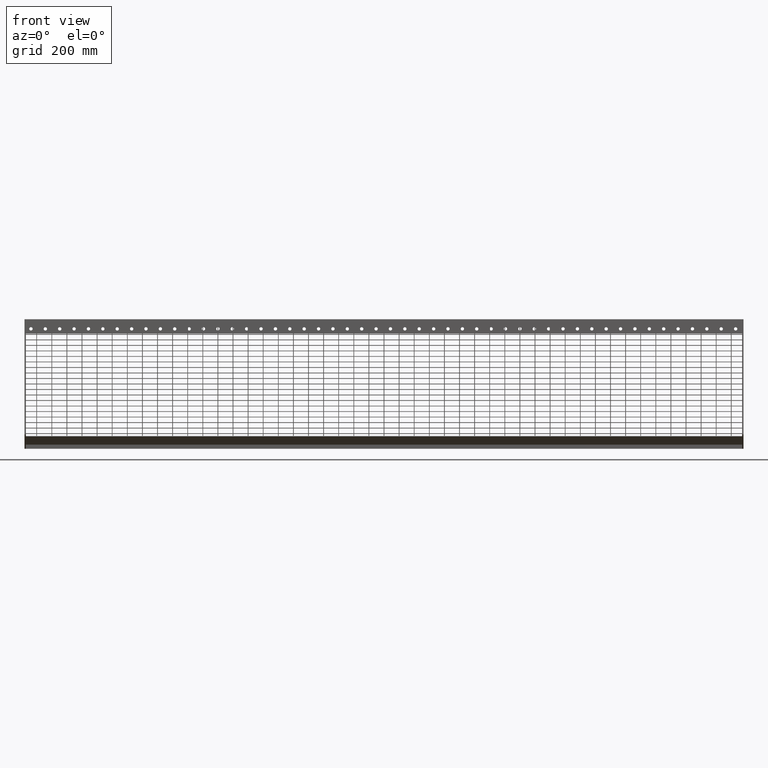
[diagram: clean part render]
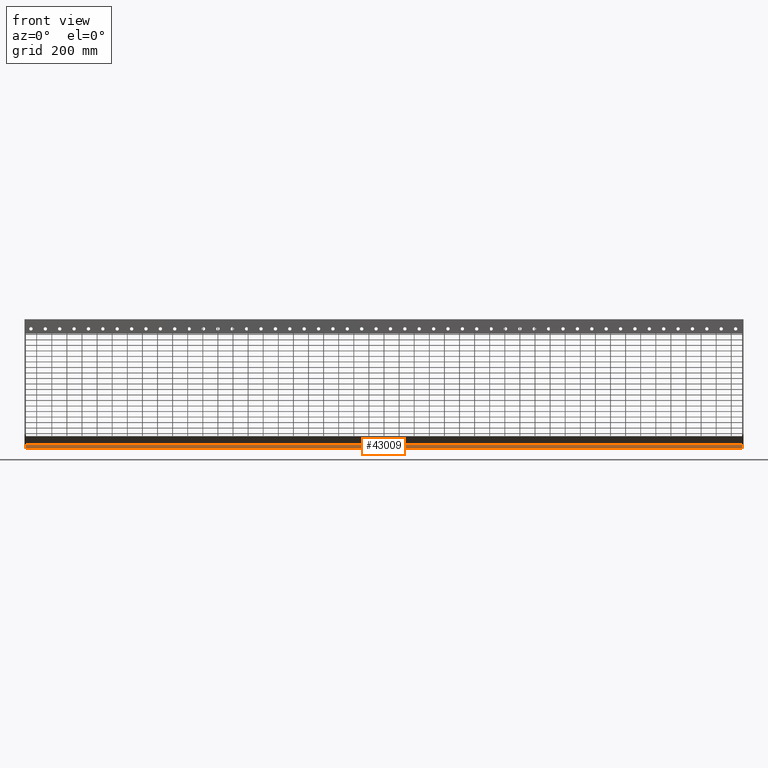
[diagram: same view with one face highlighted and labeled with its STEP entity id]
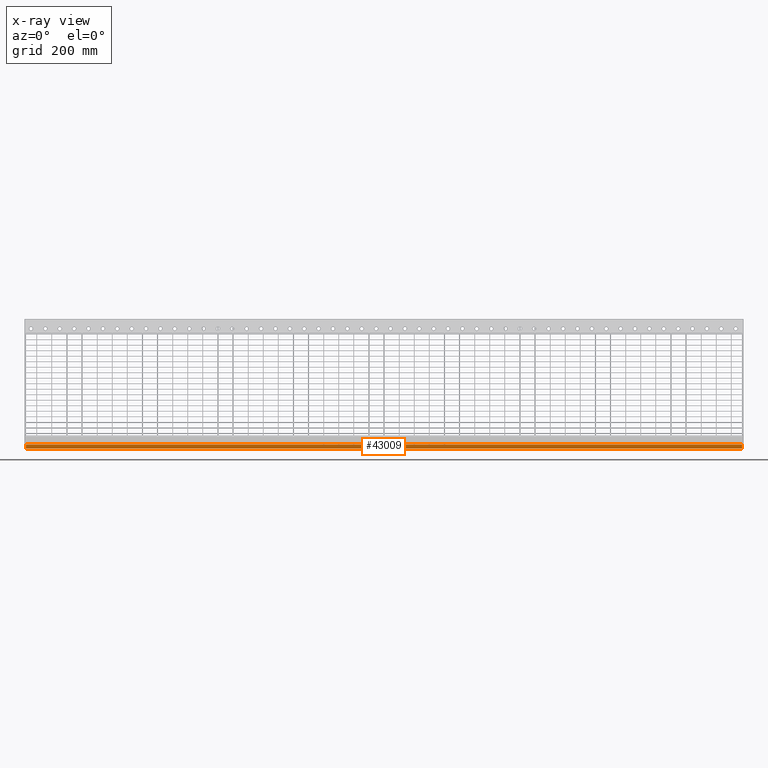
[diagram: x-ray of the same camera — body ghosted, the highlighted face saturated]
A machine part, front view. The second image highlights one B-rep face of the part: STEP entity #43009.
The next image is the same camera in x-ray: the body ghosted, the highlighted face saturated — about 0% of this face is hidden behind the body in this view.
In plain terms, the highlighted planar face has unit normal (0, 1, -0).
Its self-contained STEP definition (entity closure, byte-faithful):
#2627 = DIRECTION ( 'NONE',  ( 1.000000000000000000, -0.0000000000000000000, -0.0000000000000000000 ) ) ;
#3217 = EDGE_LOOP ( 'NONE', ( #42190, #31730, #13677, #27069 ) ) ;
#3756 = EDGE_CURVE ( 'NONE', #23351, #15274, #36457, .T. ) ;
#6368 = VECTOR ( 'NONE', #39454, 1000.000000000000000 ) ;
#9237 = VERTEX_POINT ( 'NONE', #43144 ) ;
#9297 = VECTOR ( 'NONE', #12867, 1000.000000000000000 ) ;
#12319 = LINE ( 'NONE', #15377, #38423 ) ;
#12867 = DIRECTION ( 'NONE',  ( 1.000000000000000000, -0.0000000000000000000, -0.0000000000000000000 ) ) ;
#13177 = CARTESIAN_POINT ( 'NONE',  ( -823.1577310586392300, 48.00000000000027700, -261.5000000000000000 ) ) ;
#13677 = ORIENTED_EDGE ( 'NONE', *, *, #3756, .T. ) ;
#13727 = FACE_OUTER_BOUND ( 'NONE', #3217, .T. ) ;
#15274 = VERTEX_POINT ( 'NONE', #43945 ) ;
#15377 = CARTESIAN_POINT ( 'NONE',  ( 747.0000000000000000, 48.00000000000027700, -270.0000000000000000 ) ) ;
#15416 = LINE ( 'NONE', #43251, #6368 ) ;
#17215 = VERTEX_POINT ( 'NONE', #43852 ) ;
#18914 = DIRECTION ( 'NONE',  ( 0.0000000000000000000, 0.0000000000000000000, 1.000000000000000000 ) ) ;
#20383 = EDGE_CURVE ( 'NONE', #17215, #23351, #15416, .T. ) ;
#22338 = EDGE_CURVE ( 'NONE', #17215, #9237, #37909, .T. ) ;
#23351 = VERTEX_POINT ( 'NONE', #24611 ) ;
#23459 = VECTOR ( 'NONE', #2627, 1000.000000000000000 ) ;
#24611 = CARTESIAN_POINT ( 'NONE',  ( -747.0000000000000000, 48.00000000000027700, -270.0000000000000000 ) ) ;
#24726 = PLANE ( 'NONE',  #27886 ) ;
#25898 = CARTESIAN_POINT ( 'NONE',  ( -823.1577310586392300, 48.00000000000027700, -270.0000000000000000 ) ) ;
#27069 = ORIENTED_EDGE ( 'NONE', *, *, #40661, .T. ) ;
#27886 = AXIS2_PLACEMENT_3D ( 'NONE', #31725, #28008, #38166 ) ;
#28008 = DIRECTION ( 'NONE',  ( 0.0000000000000000000, 1.000000000000000000, -0.0000000000000000000 ) ) ;
#31725 = CARTESIAN_POINT ( 'NONE',  ( -823.1577310586392300, 48.00000000000027700, -270.0000000000000000 ) ) ;
#31730 = ORIENTED_EDGE ( 'NONE', *, *, #20383, .T. ) ;
#36457 = LINE ( 'NONE', #25898, #9297 ) ;
#37909 = LINE ( 'NONE', #13177, #23459 ) ;
#38166 = DIRECTION ( 'NONE',  ( 0.0000000000000000000, 0.0000000000000000000, 1.000000000000000000 ) ) ;
#38423 = VECTOR ( 'NONE', #18914, 1000.000000000000000 ) ;
#39454 = DIRECTION ( 'NONE',  ( 0.0000000000000000000, -0.0000000000000000000, -1.000000000000000000 ) ) ;
#40661 = EDGE_CURVE ( 'NONE', #15274, #9237, #12319, .T. ) ;
#42190 = ORIENTED_EDGE ( 'NONE', *, *, #22338, .F. ) ;
#43009 = ADVANCED_FACE ( 'NONE', ( #13727 ), #24726, .F. ) ;
#43144 = CARTESIAN_POINT ( 'NONE',  ( 747.0000000000000000, 48.00000000000027700, -261.5000000000000000 ) ) ;
#43251 = CARTESIAN_POINT ( 'NONE',  ( -747.0000000000000000, 48.00000000000027700, -270.0000000000000000 ) ) ;
#43852 = CARTESIAN_POINT ( 'NONE',  ( -747.0000000000000000, 48.00000000000027700, -261.5000000000000000 ) ) ;
#43945 = CARTESIAN_POINT ( 'NONE',  ( 747.0000000000000000, 48.00000000000027700, -270.0000000000000000 ) ) ;